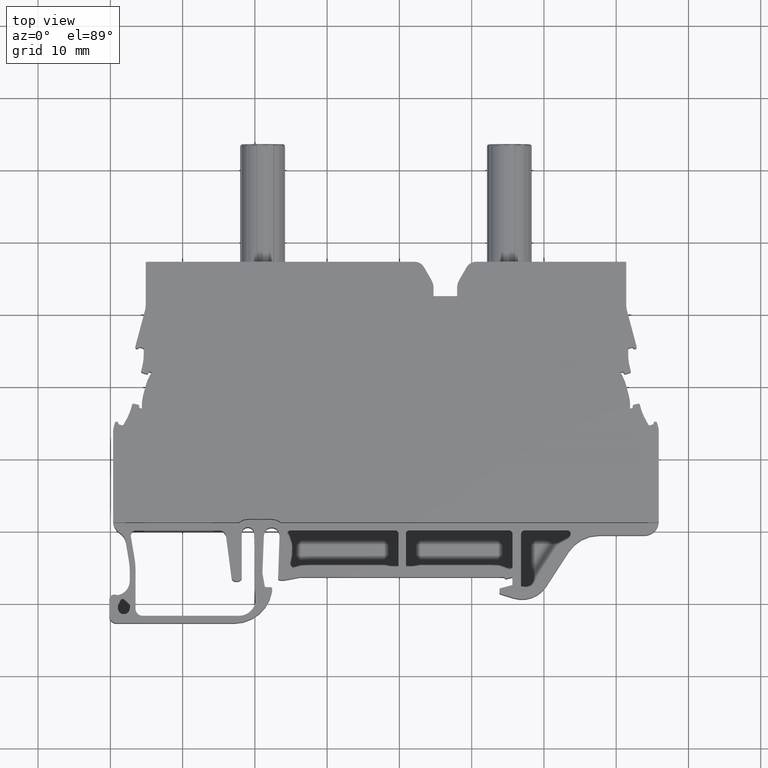
[diagram: clean part render]
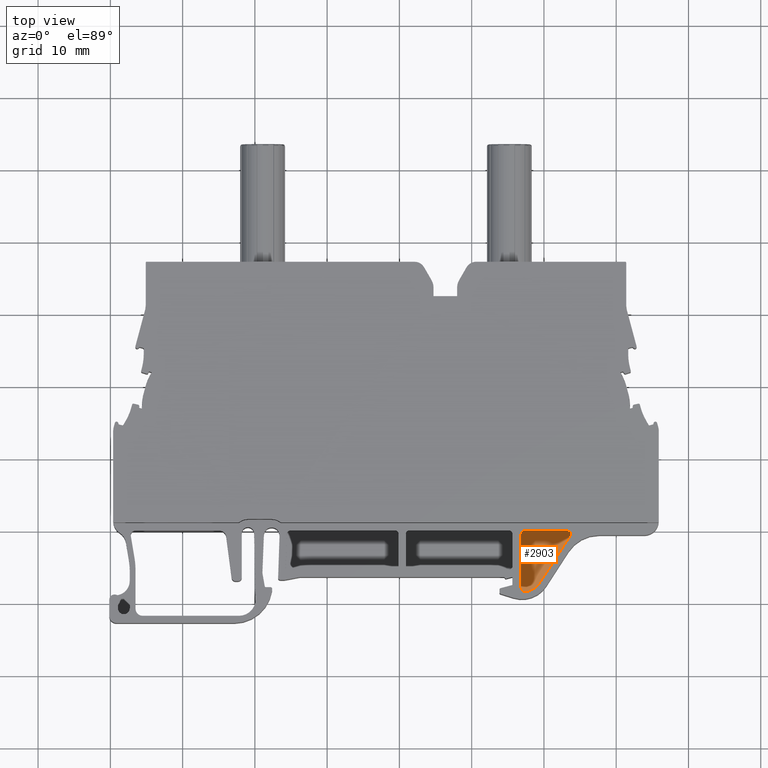
[diagram: same view with one face highlighted and labeled with its STEP entity id]
A machine part, top view. The second image highlights one B-rep face of the part: STEP entity #2903.
In plain terms, the highlighted planar face has unit normal (0, 0, 1).
Its self-contained STEP definition (entity closure, byte-faithful):
#715 = ORIENTED_EDGE ( 'NONE', *, *, #2341, .F. ) ;
#765 = ORIENTED_EDGE ( 'NONE', *, *, #2360, .F. ) ;
#780 = ORIENTED_EDGE ( 'NONE', *, *, #2411, .F. ) ;
#791 = ORIENTED_EDGE ( 'NONE', *, *, #2493, .T. ) ;
#808 = ORIENTED_EDGE ( 'NONE', *, *, #5774, .F. ) ;
#815 = ORIENTED_EDGE ( 'NONE', *, *, #2371, .F. ) ;
#1911 = VERTEX_POINT ( 'NONE', #24290 ) ;
#1947 = VERTEX_POINT ( 'NONE', #24322 ) ;
#2341 = EDGE_CURVE ( 'NONE', #23578, #23625, #3255, .T. ) ;
#2360 = EDGE_CURVE ( 'NONE', #23625, #23605, #13564, .T. ) ;
#2371 = EDGE_CURVE ( 'NONE', #23605, #23540, #13596, .T. ) ;
#2377 = EDGE_CURVE ( 'NONE', #1947, #23578, #13556, .T. ) ;
#2411 = EDGE_CURVE ( 'NONE', #23541, #23602, #13377, .T. ) ;
#2459 = EDGE_CURVE ( 'NONE', #23602, #1911, #16458, .T. ) ;
#2493 = EDGE_CURVE ( 'NONE', #23541, #23540, #16557, .T. ) ;
#2903 = ADVANCED_FACE ( 'NONE', ( #26014 ), #26021, .T. ) ;
#3255 = LINE ( 'NONE', #3261, #13569 ) ;
#3261 = CARTESIAN_POINT ( 'NONE',  ( 626.4167613190310200, -404.7463717028339800, 4.649999999999999500 ) ) ;
#3304 = DIRECTION ( 'NONE',  ( -0.5427009814698989800, -0.8399259757333429300, 0.0000000000000000000 ) ) ;
#3349 = DIRECTION ( 'NONE',  ( -0.0000000000000000000, -0.0000000000000000000, -1.000000000000000000 ) ) ;
#3351 = CARTESIAN_POINT ( 'NONE',  ( 1526.978371635415000, 994.5602729680009600, 4.649999999999999500 ) ) ;
#3366 = DIRECTION ( 'NONE',  ( 1.000000000000000000, -3.700743184450093700E-014, 0.0000000000000000000 ) ) ;
#3385 = CARTESIAN_POINT ( 'NONE',  ( 1533.192470240319800, 999.5711034983399900, 4.649999999999999500 ) ) ;
#3393 = CARTESIAN_POINT ( 'NONE',  ( 1527.340206411480000, 992.0865962447819600, 4.649999999999999500 ) ) ;
#3396 = DIRECTION ( 'NONE',  ( -0.0000000000000000000, -0.0000000000000000000, -1.000000000000000000 ) ) ;
#3402 = DIRECTION ( 'NONE',  ( 1.000000000000000000, 2.220446049250557700E-013, 0.0000000000000000000 ) ) ;
#3418 = DIRECTION ( 'NONE',  ( 1.000000000000000000, 0.0000000000000000000, 0.0000000000000000000 ) ) ;
#3426 = DIRECTION ( 'NONE',  ( -0.0000000000000000000, -0.0000000000000000000, -1.000000000000000000 ) ) ;
#4198 = ORIENTED_EDGE ( 'NONE', *, *, #2377, .F. ) ;
#4204 = ORIENTED_EDGE ( 'NONE', *, *, #2459, .F. ) ;
#5774 = EDGE_CURVE ( 'NONE', #1911, #1947, #6994, .T. ) ;
#5842 = CARTESIAN_POINT ( 'NONE',  ( 1533.192470240319800, 999.5711034983399900, 4.649999999999999500 ) ) ;
#5862 = DIRECTION ( 'NONE',  ( -0.0000000000000000000, -0.0000000000000000000, -1.000000000000000000 ) ) ;
#5863 = DIRECTION ( 'NONE',  ( 1.000000000000000000, 0.0000000000000000000, 0.0000000000000000000 ) ) ;
#6989 = AXIS2_PLACEMENT_3D ( 'NONE', #5842, #5862, #5863 ) ;
#6994 = CIRCLE ( 'NONE', #6989, 0.4999999999999449300 ) ;
#7913 = VECTOR ( 'NONE', #16460, 1000.000000000000000 ) ;
#7932 = VECTOR ( 'NONE', #16566, 1000.000000000000000 ) ;
#10309 = CARTESIAN_POINT ( 'NONE',  ( 1526.840206411479800, 999.5711034983399900, 4.649999999999999500 ) ) ;
#10321 = CARTESIAN_POINT ( 'NONE',  ( 1526.840206411479800, 992.0865962447819600, 4.649999999999999500 ) ) ;
#10535 = CARTESIAN_POINT ( 'NONE',  ( 1533.612432794504900, 999.2997523364100500, 4.649999999999999500 ) ) ;
#10567 = CARTESIAN_POINT ( 'NONE',  ( 1529.498149467585100, 992.9321695315100000, 4.649999999999999500 ) ) ;
#10596 = CARTESIAN_POINT ( 'NONE',  ( 1527.412573469565100, 991.5918609530299400, 4.649999999999999500 ) ) ;
#10626 = CARTESIAN_POINT ( 'NONE',  ( 1527.340206411480000, 1000.071103498340100, 4.649999999999999500 ) ) ;
#13377 = CIRCLE ( 'NONE', #13443, 0.4999999999999449300 ) ;
#13443 = AXIS2_PLACEMENT_3D ( 'NONE', #16321, #16347, #16351 ) ;
#13555 = AXIS2_PLACEMENT_3D ( 'NONE', #3393, #3396, #3402 ) ;
#13556 = CIRCLE ( 'NONE', #13562, 0.4999999999999449300 ) ;
#13562 = AXIS2_PLACEMENT_3D ( 'NONE', #3385, #3426, #3418 ) ;
#13564 = CIRCLE ( 'NONE', #13585, 3.000000187233009500 ) ;
#13569 = VECTOR ( 'NONE', #3304, 1000.000000000000100 ) ;
#13585 = AXIS2_PLACEMENT_3D ( 'NONE', #3351, #3349, #3366 ) ;
#13596 = CIRCLE ( 'NONE', #13555, 0.4999999999999449300 ) ;
#16321 = CARTESIAN_POINT ( 'NONE',  ( 1527.340206411480000, 999.5711034983399900, 4.649999999999999500 ) ) ;
#16347 = DIRECTION ( 'NONE',  ( -0.0000000000000000000, -0.0000000000000000000, -1.000000000000000000 ) ) ;
#16351 = DIRECTION ( 'NONE',  ( 1.000000000000000000, 0.0000000000000000000, 0.0000000000000000000 ) ) ;
#16458 = LINE ( 'NONE', #16477, #7913 ) ;
#16460 = DIRECTION ( 'NONE',  ( 1.000000000000000000, 0.0000000000000000000, 0.0000000000000000000 ) ) ;
#16477 = CARTESIAN_POINT ( 'NONE',  ( 0.0000000000000000000, 1000.071103498340100, 4.649999999999999500 ) ) ;
#16557 = LINE ( 'NONE', #16617, #7932 ) ;
#16566 = DIRECTION ( 'NONE',  ( 0.0000000000000000000, -1.000000000000000000, 0.0000000000000000000 ) ) ;
#16617 = CARTESIAN_POINT ( 'NONE',  ( 1526.840206411479800, 0.0000000000000000000, 4.649999999999999500 ) ) ;
#17605 = AXIS2_PLACEMENT_3D ( 'NONE', #26016, #26004, #26007 ) ;
#22541 = EDGE_LOOP ( 'NONE', ( #815, #765, #715, #4198, #808, #4204, #780, #791 ) ) ;
#23540 = VERTEX_POINT ( 'NONE', #10321 ) ;
#23541 = VERTEX_POINT ( 'NONE', #10309 ) ;
#23578 = VERTEX_POINT ( 'NONE', #10535 ) ;
#23602 = VERTEX_POINT ( 'NONE', #10626 ) ;
#23605 = VERTEX_POINT ( 'NONE', #10596 ) ;
#23625 = VERTEX_POINT ( 'NONE', #10567 ) ;
#24290 = CARTESIAN_POINT ( 'NONE',  ( 1533.192469375294900, 1000.071103498340100, 4.649999999999999500 ) ) ;
#24322 = CARTESIAN_POINT ( 'NONE',  ( 1533.692470240319800, 999.5711034983399900, 4.649999999999999500 ) ) ;
#26004 = DIRECTION ( 'NONE',  ( 0.0000000000000000000, 0.0000000000000000000, 1.000000000000000000 ) ) ;
#26007 = DIRECTION ( 'NONE',  ( 1.000000000000000000, 0.0000000000000000000, 0.0000000000000000000 ) ) ;
#26014 = FACE_OUTER_BOUND ( 'NONE', #22541, .T. ) ;
#26016 = CARTESIAN_POINT ( 'NONE',  ( 0.0000000000000000000, 0.0000000000000000000, 4.649999999999999500 ) ) ;
#26021 = PLANE ( 'NONE',  #17605 ) ;